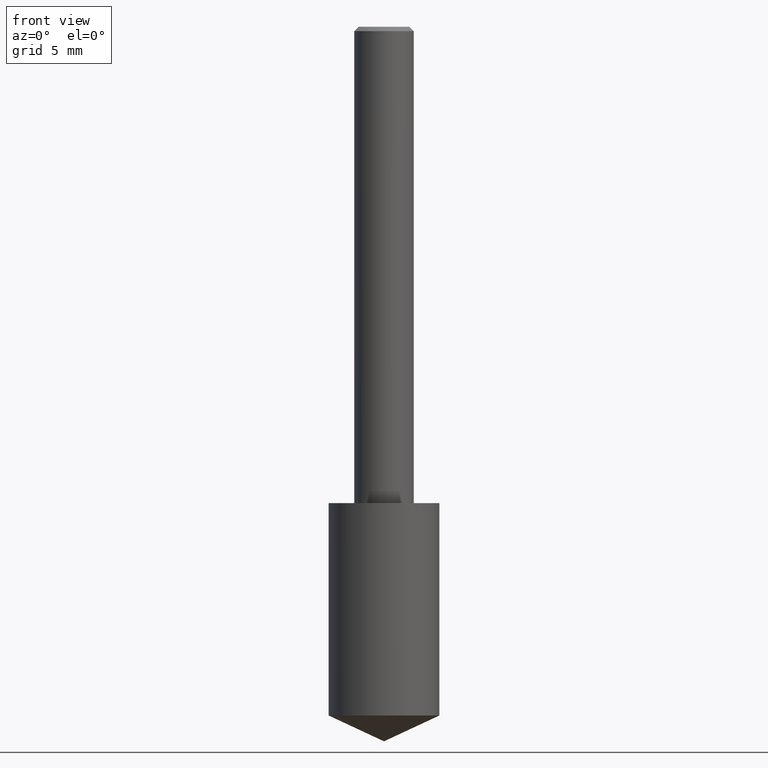
[diagram: clean part render]
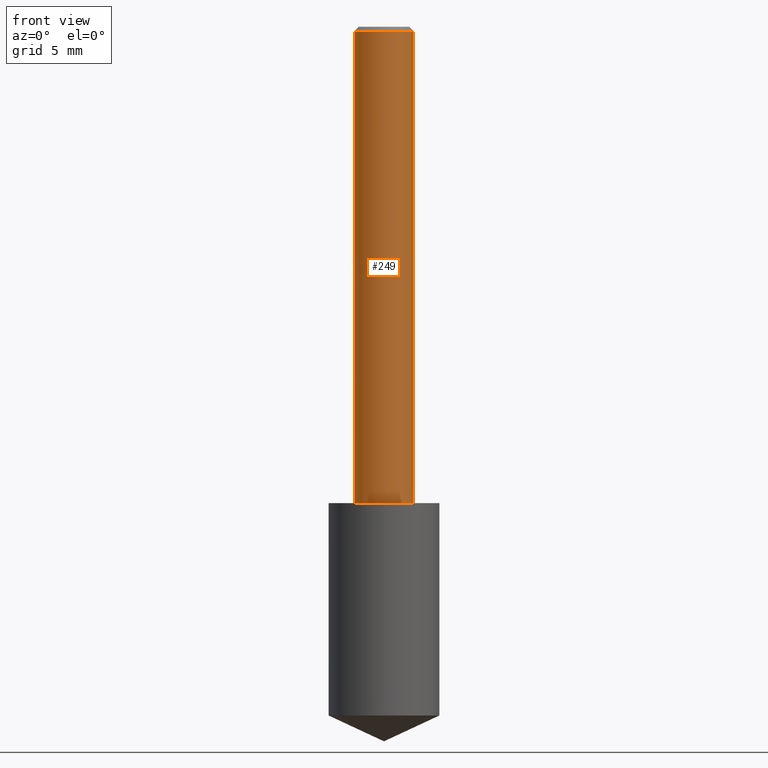
[diagram: same view with one face highlighted and labeled with its STEP entity id]
A machine part, front view. The second image highlights one B-rep face of the part: STEP entity #249.
In plain terms, the highlighted cylindrical surface (edge-blend (fillet) strip) has radius 1.5875 mm, axis along (-0, 0, 1).
Its self-contained STEP definition (entity closure, byte-faithful):
#3 = CARTESIAN_POINT ( 'NONE',  ( 2.445468806185137438E-29, -3.491481338843146371E-15, -1.000000000000000222 ) ) ;
#8 = ORIENTED_EDGE ( 'NONE', *, *, #75, .T. ) ;
#15 = EDGE_CURVE ( 'NONE', #177, #308, #100, .T. ) ;
#16 = FACE_OUTER_BOUND ( 'NONE', #150, .T. ) ;
#34 = CARTESIAN_POINT ( 'NONE',  ( 0.06250000000000006939, -4.364351673553921624E-16, 3.047610484872463374E-30 ) ) ;
#36 = VECTOR ( 'NONE', #120, 39.37007874015748143 ) ;
#37 = CARTESIAN_POINT ( 'NONE',  ( 2.292627005798582375E-31, -3.273263755165473266E-17, -0.009375000000000069042 ) ) ;
#42 = ORIENTED_EDGE ( 'NONE', *, *, #54, .F. ) ;
#54 = EDGE_CURVE ( 'NONE', #177, #210, #90, .T. ) ;
#59 = CARTESIAN_POINT ( 'NONE',  ( -0.06250000000000000000, -1.318017778347336672E-15, -0.009375000000000069042 ) ) ;
#61 = DIRECTION ( 'NONE',  ( 1.000000000000000000, -6.982962677686266711E-15, 0.000000000000000000 ) ) ;
#75 = EDGE_CURVE ( 'NONE', #308, #98, #220, .T. ) ;
#87 = DIRECTION ( 'NONE',  ( 1.000000000000000000, -6.982962677686266711E-15, 4.876176775795935793E-29 ) ) ;
#90 = LINE ( 'NONE', #332, #158 ) ;
#98 = VERTEX_POINT ( 'NONE', #173 ) ;
#100 = CIRCLE ( 'NONE', #339, 0.06250000000000012490 ) ;
#106 = DIRECTION ( 'NONE',  ( 1.000000000000000000, -6.982962677686264344E-15, 0.000000000000000000 ) ) ;
#118 = CIRCLE ( 'NONE', #144, 0.06250000000000000000 ) ;
#120 = DIRECTION ( 'NONE',  ( -2.445468806185136877E-29, 3.491481338843145188E-15, 1.000000000000000000 ) ) ;
#123 = CYLINDRICAL_SURFACE ( 'NONE', #242, 0.06250000000000006939 ) ;
#131 = ORIENTED_EDGE ( 'NONE', *, *, #161, .F. ) ;
#141 = ORIENTED_EDGE ( 'NONE', *, *, #15, .T. ) ;
#143 = CARTESIAN_POINT ( 'NONE',  ( -0.06250000000000012490, -1.318017778347335489E-15, -1.000000000000000222 ) ) ;
#144 = AXIS2_PLACEMENT_3D ( 'NONE', #37, #147, #61 ) ;
#147 = DIRECTION ( 'NONE',  ( -2.445468806185136597E-29, 3.491481338843145583E-15, 1.000000000000000000 ) ) ;
#150 = EDGE_LOOP ( 'NONE', ( #42, #141, #8, #131 ) ) ;
#151 = CARTESIAN_POINT ( 'NONE',  ( 0.06250000000000012490, -3.927916506198539224E-15, -1.000000000000000222 ) ) ;
#158 = VECTOR ( 'NONE', #278, 39.37007874015748143 ) ;
#161 = EDGE_CURVE ( 'NONE', #210, #98, #118, .T. ) ;
#173 = CARTESIAN_POINT ( 'NONE',  ( 0.06250000000000000000, -4.691678049070464390E-16, -0.009375000000000069042 ) ) ;
#177 = VERTEX_POINT ( 'NONE', #143 ) ;
#210 = VERTEX_POINT ( 'NONE', #59 ) ;
#220 = LINE ( 'NONE', #34, #36 ) ;
#242 = AXIS2_PLACEMENT_3D ( 'NONE', #331, #305, #87 ) ;
#249 = ADVANCED_FACE ( 'NONE', ( #16 ), #123, .T. ) ;
#278 = DIRECTION ( 'NONE',  ( -2.445468806185136877E-29, 3.491481338843145188E-15, 1.000000000000000000 ) ) ;
#285 = DIRECTION ( 'NONE',  ( -2.445468806185136597E-29, 3.491481338843145583E-15, 1.000000000000000000 ) ) ;
#305 = DIRECTION ( 'NONE',  ( -2.445468806185136597E-29, 3.491481338843145583E-15, 1.000000000000000000 ) ) ;
#308 = VERTEX_POINT ( 'NONE', #151 ) ;
#331 = CARTESIAN_POINT ( 'NONE',  ( 0.000000000000000000, 0.000000000000000000, 0.000000000000000000 ) ) ;
#332 = CARTESIAN_POINT ( 'NONE',  ( -0.06250000000000006939, 4.440892098500631092E-16, -3.074334431409319267E-30 ) ) ;
#339 = AXIS2_PLACEMENT_3D ( 'NONE', #3, #285, #106 ) ;